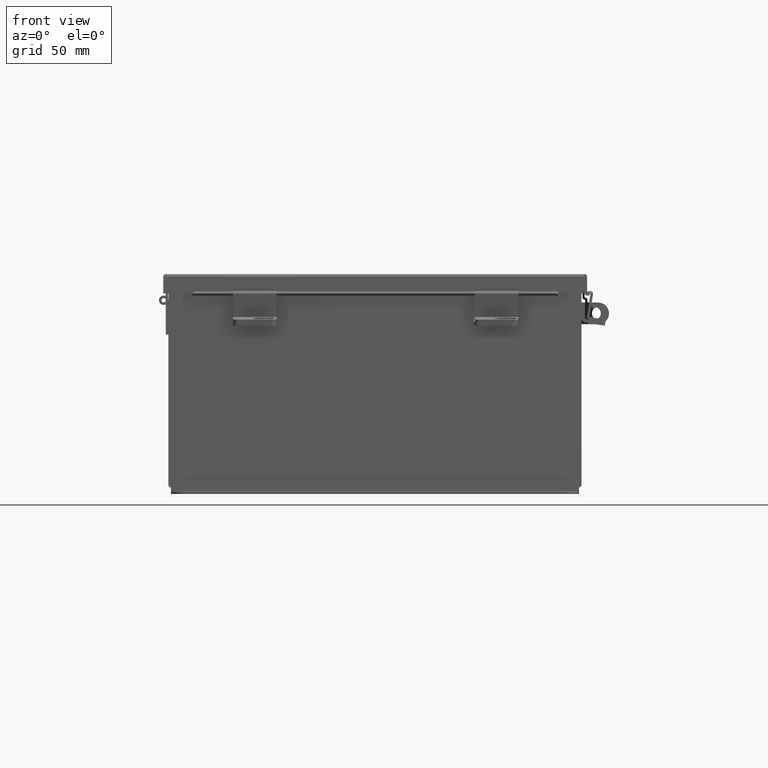
[diagram: clean part render]
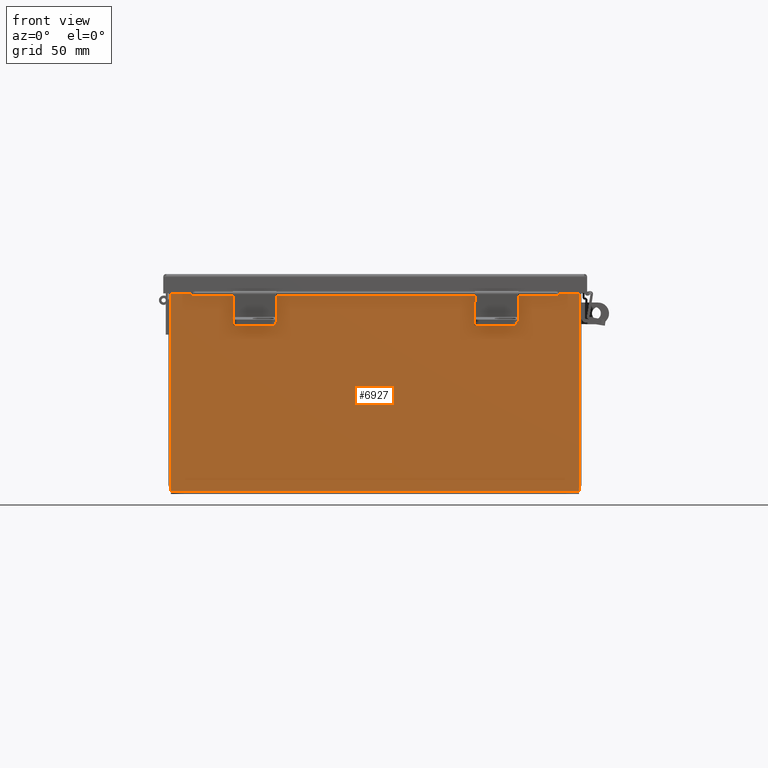
[diagram: same view with one face highlighted and labeled with its STEP entity id]
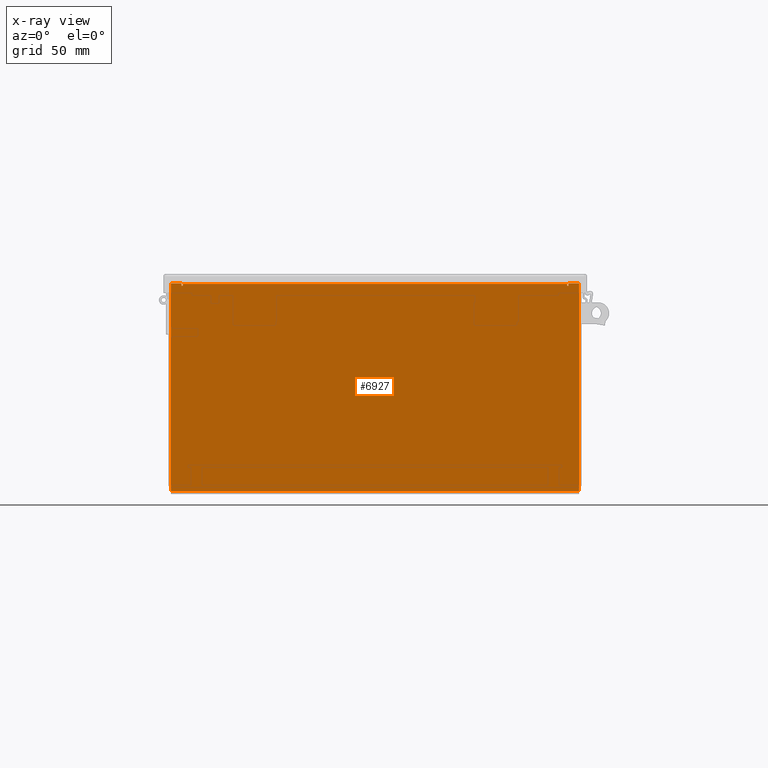
[diagram: x-ray of the same camera — body ghosted, the highlighted face saturated]
A machine part, front view. The second image highlights one B-rep face of the part: STEP entity #6927.
The next image is the same camera in x-ray: the body ghosted, the highlighted face saturated — about 0% of this face is hidden behind the body in this view.
In plain terms, the highlighted planar face has unit normal (-0, 1, -0).
Its self-contained STEP definition (entity closure, byte-faithful):
#59 = ORIENTED_EDGE ( 'NONE', *, *, #185, .T. ) ;
#185 = EDGE_CURVE ( 'NONE', #16877, #10452, #8776, .T. ) ;
#283 = DIRECTION ( 'NONE',  ( 1.000000000000000000, 4.910036603141682400E-031, -0.0000000000000000000 ) ) ;
#341 = ORIENTED_EDGE ( 'NONE', *, *, #13031, .F. ) ;
#350 = LINE ( 'NONE', #11417, #4238 ) ;
#499 = VERTEX_POINT ( 'NONE', #10146 ) ;
#581 = DIRECTION ( 'NONE',  ( 0.0000000000000000000, 0.0000000000000000000, -1.000000000000000000 ) ) ;
#597 = EDGE_CURVE ( 'NONE', #3196, #9184, #14273, .T. ) ;
#636 = DIRECTION ( 'NONE',  ( 1.000000000000000000, 4.910036603141682400E-031, -0.0000000000000000000 ) ) ;
#660 = CARTESIAN_POINT ( 'NONE',  ( 5.619650000000008900, 8.741913579725642300E-015, 2.925299999999999600 ) ) ;
#1575 = DIRECTION ( 'NONE',  ( 0.0000000000000000000, 0.0000000000000000000, -1.000000000000000000 ) ) ;
#1907 = CARTESIAN_POINT ( 'NONE',  ( -5.925299999999991100, -8.741913579725642300E-015, -3.099299999999999900 ) ) ;
#1934 = DIRECTION ( 'NONE',  ( 4.910036603141682400E-031, 1.000000000000000000, -0.0000000000000000000 ) ) ;
#1953 = DIRECTION ( 'NONE',  ( 0.0000000000000000000, 0.0000000000000000000, -1.000000000000000000 ) ) ;
#2134 = CARTESIAN_POINT ( 'NONE',  ( 5.925300000000008000, 8.741913579725642300E-015, 2.925299999999998200 ) ) ;
#2165 = CARTESIAN_POINT ( 'NONE',  ( -5.925299999999992900, -8.741913579725642300E-015, -3.099299999999999900 ) ) ;
#2381 = EDGE_CURVE ( 'NONE', #3670, #7673, #2845, .T. ) ;
#2470 = PLANE ( 'NONE',  #17857 ) ;
#2788 = CARTESIAN_POINT ( 'NONE',  ( -5.925299999999992900, 0.0000000000000000000, 2.925299999999999600 ) ) ;
#2845 = LINE ( 'NONE', #15061, #17946 ) ;
#2912 = VERTEX_POINT ( 'NONE', #15861 ) ;
#3006 = ORIENTED_EDGE ( 'NONE', *, *, #12472, .F. ) ;
#3196 = VERTEX_POINT ( 'NONE', #1907 ) ;
#3498 = ORIENTED_EDGE ( 'NONE', *, *, #16193, .F. ) ;
#3670 = VERTEX_POINT ( 'NONE', #8618 ) ;
#3874 = VERTEX_POINT ( 'NONE', #11823 ) ;
#4196 = CARTESIAN_POINT ( 'NONE',  ( 5.619650000000007100, 8.741913579725642300E-015, 2.874949999999998300 ) ) ;
#4238 = VECTOR ( 'NONE', #14291, 39.37007874015748100 ) ;
#4287 = DIRECTION ( 'NONE',  ( 4.910036603141682400E-031, 1.000000000000000000, -0.0000000000000000000 ) ) ;
#4534 = CARTESIAN_POINT ( 'NONE',  ( 5.619649999999937000, 0.0000000000000000000, -1.262113773072889600E-013 ) ) ;
#4960 = CARTESIAN_POINT ( 'NONE',  ( -5.582299999999992900, 2.185478394931410600E-015, 2.912299999999998300 ) ) ;
#5538 = AXIS2_PLACEMENT_3D ( 'NONE', #13056, #4287, #14544 ) ;
#5631 = CARTESIAN_POINT ( 'NONE',  ( -5.619649999999991200, 0.0000000000000000000, 2.925299999999998200 ) ) ;
#5743 = CARTESIAN_POINT ( 'NONE',  ( -5.582300000000000000, 0.0000000000000000000, 0.0000000000000000000 ) ) ;
#5914 = CARTESIAN_POINT ( 'NONE',  ( -5.619650000000000000, 0.0000000000000000000, 0.0000000000000000000 ) ) ;
#6210 = EDGE_CURVE ( 'NONE', #10452, #9184, #13374, .T. ) ;
#6392 = DIRECTION ( 'NONE',  ( 1.000000000000000000, 4.910036603141682400E-031, 0.0000000000000000000 ) ) ;
#6499 = ORIENTED_EDGE ( 'NONE', *, *, #15304, .T. ) ;
#6553 = CARTESIAN_POINT ( 'NONE',  ( 5.925300000000008000, 8.741913579725642300E-015, 2.925299999999998200 ) ) ;
#6927 = ADVANCED_FACE ( 'NONE', ( #10593 ), #2470, .F. ) ;
#7066 = AXIS2_PLACEMENT_3D ( 'NONE', #9581, #1934, #581 ) ;
#7673 = VERTEX_POINT ( 'NONE', #5631 ) ;
#8047 = VECTOR ( 'NONE', #16022, 39.37007874015748100 ) ;
#8153 = EDGE_CURVE ( 'NONE', #3874, #12271, #13966, .T. ) ;
#8242 = ORIENTED_EDGE ( 'NONE', *, *, #8153, .F. ) ;
#8441 = CARTESIAN_POINT ( 'NONE',  ( 0.0000000000000000000, 0.0000000000000000000, 0.0000000000000000000 ) ) ;
#8618 = CARTESIAN_POINT ( 'NONE',  ( -5.925299999999992900, 0.0000000000000000000, 2.925299999999999600 ) ) ;
#8754 = CARTESIAN_POINT ( 'NONE',  ( 5.582299999999999200, 0.0000000000000000000, -4.370956789862821100E-015 ) ) ;
#8776 = LINE ( 'NONE', #2788, #16078 ) ;
#8988 = DIRECTION ( 'NONE',  ( -2.170286390199955400E-014, -7.888609052210118100E-031, -1.000000000000000000 ) ) ;
#9033 = VECTOR ( 'NONE', #14715, 39.37007874015748100 ) ;
#9124 = EDGE_CURVE ( 'NONE', #16877, #10721, #11012, .T. ) ;
#9161 = CIRCLE ( 'NONE', #5538, 0.01867500000000003900 ) ;
#9184 = VERTEX_POINT ( 'NONE', #17944 ) ;
#9581 = CARTESIAN_POINT ( 'NONE',  ( -5.600974999999991200, 0.0000000000000000000, 2.874949999999997000 ) ) ;
#10146 = CARTESIAN_POINT ( 'NONE',  ( -5.582299999999991200, 2.185478394931410600E-015, 2.912299999999998300 ) ) ;
#10174 = ORIENTED_EDGE ( 'NONE', *, *, #15404, .F. ) ;
#10452 = VERTEX_POINT ( 'NONE', #6553 ) ;
#10511 = EDGE_LOOP ( 'NONE', ( #3498, #8242, #10174, #13961, #3006, #341, #15392, #59, #13455, #18295, #6499, #13441 ) ) ;
#10567 = VECTOR ( 'NONE', #8988, 39.37007874015748100 ) ;
#10572 = VECTOR ( 'NONE', #283, 39.37007874015748100 ) ;
#10573 = CARTESIAN_POINT ( 'NONE',  ( 5.582300000000008000, 8.741913579725642300E-015, 2.874949999999998300 ) ) ;
#10593 = FACE_OUTER_BOUND ( 'NONE', #10511, .T. ) ;
#10687 = DIRECTION ( 'NONE',  ( 1.000000000000000000, 4.910036603141682400E-031, 0.0000000000000000000 ) ) ;
#10721 = VERTEX_POINT ( 'NONE', #4196 ) ;
#11012 = LINE ( 'NONE', #4534, #10567 ) ;
#11417 = CARTESIAN_POINT ( 'NONE',  ( -5.925299999999992900, 0.0000000000000000000, 2.925299999999999600 ) ) ;
#11552 = DIRECTION ( 'NONE',  ( -4.910036603141682400E-031, -1.000000000000000000, -0.0000000000000000000 ) ) ;
#11823 = CARTESIAN_POINT ( 'NONE',  ( -5.582299999999991200, 0.0000000000000000000, 2.874949999999997000 ) ) ;
#11949 = LINE ( 'NONE', #8754, #8047 ) ;
#12115 = VECTOR ( 'NONE', #636, 39.37007874015748100 ) ;
#12271 = VERTEX_POINT ( 'NONE', #14144 ) ;
#12472 = EDGE_CURVE ( 'NONE', #13875, #2912, #11949, .T. ) ;
#13031 = EDGE_CURVE ( 'NONE', #10721, #13875, #9161, .T. ) ;
#13056 = CARTESIAN_POINT ( 'NONE',  ( 5.600975000000007100, 8.741913579725642300E-015, 2.874949999999998300 ) ) ;
#13374 = LINE ( 'NONE', #2134, #16332 ) ;
#13441 = ORIENTED_EDGE ( 'NONE', *, *, #2381, .T. ) ;
#13455 = ORIENTED_EDGE ( 'NONE', *, *, #6210, .T. ) ;
#13875 = VERTEX_POINT ( 'NONE', #10573 ) ;
#13961 = ORIENTED_EDGE ( 'NONE', *, *, #13989, .T. ) ;
#13966 = CIRCLE ( 'NONE', #7066, 0.01867500000000003900 ) ;
#13989 = EDGE_CURVE ( 'NONE', #499, #2912, #15990, .T. ) ;
#14071 = VECTOR ( 'NONE', #17410, 39.37007874015748100 ) ;
#14144 = CARTESIAN_POINT ( 'NONE',  ( -5.619649999999991200, 0.0000000000000000000, 2.874949999999997000 ) ) ;
#14273 = LINE ( 'NONE', #2165, #10572 ) ;
#14291 = DIRECTION ( 'NONE',  ( 0.0000000000000000000, 0.0000000000000000000, 1.000000000000000000 ) ) ;
#14544 = DIRECTION ( 'NONE',  ( 0.0000000000000000000, 0.0000000000000000000, -1.000000000000000000 ) ) ;
#14715 = DIRECTION ( 'NONE',  ( 0.0000000000000000000, 0.0000000000000000000, 1.000000000000000000 ) ) ;
#15025 = LINE ( 'NONE', #5743, #14071 ) ;
#15061 = CARTESIAN_POINT ( 'NONE',  ( -5.925299999999992900, 0.0000000000000000000, 2.925299999999999600 ) ) ;
#15304 = EDGE_CURVE ( 'NONE', #3196, #3670, #350, .T. ) ;
#15392 = ORIENTED_EDGE ( 'NONE', *, *, #9124, .F. ) ;
#15404 = EDGE_CURVE ( 'NONE', #499, #3874, #15025, .T. ) ;
#15861 = CARTESIAN_POINT ( 'NONE',  ( 5.582300000000008000, 8.741913579725642300E-015, 2.912299999999997400 ) ) ;
#15990 = LINE ( 'NONE', #4960, #12115 ) ;
#16022 = DIRECTION ( 'NONE',  ( 0.0000000000000000000, 0.0000000000000000000, 1.000000000000000000 ) ) ;
#16078 = VECTOR ( 'NONE', #6392, 39.37007874015748100 ) ;
#16193 = EDGE_CURVE ( 'NONE', #12271, #7673, #16341, .T. ) ;
#16332 = VECTOR ( 'NONE', #1953, 39.37007874015748100 ) ;
#16341 = LINE ( 'NONE', #5914, #9033 ) ;
#16877 = VERTEX_POINT ( 'NONE', #660 ) ;
#17410 = DIRECTION ( 'NONE',  ( 0.0000000000000000000, 0.0000000000000000000, -1.000000000000000000 ) ) ;
#17857 = AXIS2_PLACEMENT_3D ( 'NONE', #8441, #11552, #1575 ) ;
#17944 = CARTESIAN_POINT ( 'NONE',  ( 5.925300000000008000, 0.0000000000000000000, -3.099300000000004400 ) ) ;
#17946 = VECTOR ( 'NONE', #10687, 39.37007874015748100 ) ;
#18295 = ORIENTED_EDGE ( 'NONE', *, *, #597, .F. ) ;